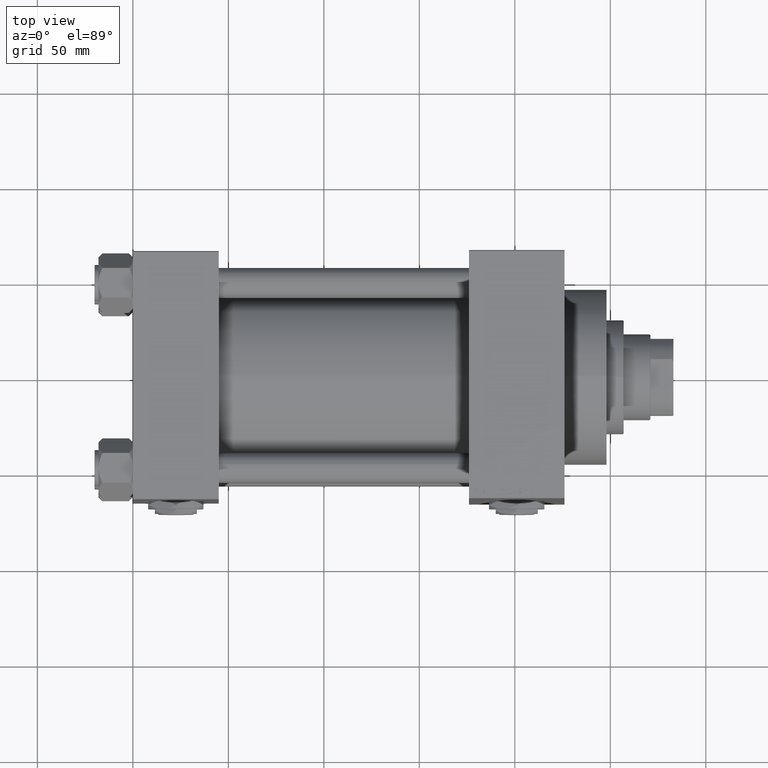
[diagram: clean part render]
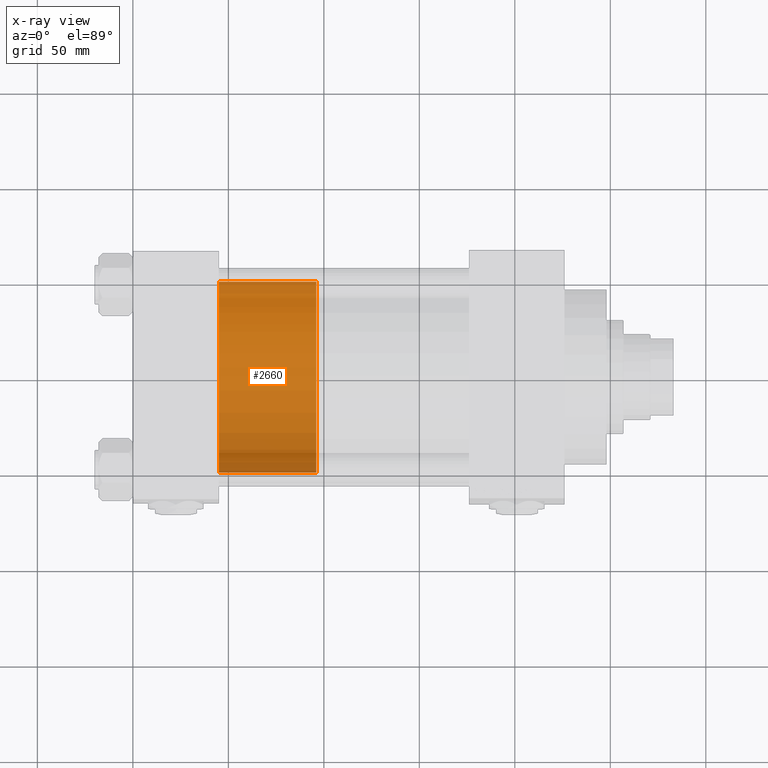
[diagram: x-ray — body ghosted, one internal face saturated and labeled with its STEP entity id]
A machine part, top view, then the same camera in x-ray: the body is ghosted and one INTERNAL B-rep face — a face not visible from any outside direction — is saturated and labeled: STEP entity #2660.
In plain terms, the highlighted cylindrical surface (partial cylindrical patch) has radius 50 mm, axis along (-1, 0, 0).
Its self-contained STEP definition (entity closure, byte-faithful):
#590 = CARTESIAN_POINT ( 'NONE',  ( -50.00000000000000000, 0.000000000000000000, 0.000000000000000000 ) ) ;
#2521 = DIRECTION ( 'NONE',  ( -0.000000000000000000, -0.000000000000000000, -1.000000000000000000 ) ) ;
#2660 = ADVANCED_FACE ( 'NONE', ( #43800 ), #32478, .T. ) ;
#2764 = ORIENTED_EDGE ( 'NONE', *, *, #21436, .T. ) ;
#4764 = VERTEX_POINT ( 'NONE', #45566 ) ;
#7732 = CARTESIAN_POINT ( 'NONE',  ( 50.00000000000000000, 6.123233995736766085E-15, 51.00000000000000000 ) ) ;
#8782 = EDGE_CURVE ( 'NONE', #26380, #25158, #18733, .T. ) ;
#9316 = CARTESIAN_POINT ( 'NONE',  ( 0.000000000000000000, 0.000000000000000000, 51.00000000000000000 ) ) ;
#10393 = ORIENTED_EDGE ( 'NONE', *, *, #16239, .T. ) ;
#10449 = DIRECTION ( 'NONE',  ( -0.000000000000000000, -0.000000000000000000, -1.000000000000000000 ) ) ;
#11430 = AXIS2_PLACEMENT_3D ( 'NONE', #26696, #14856, #46083 ) ;
#13352 = CIRCLE ( 'NONE', #44008, 50.00000000000000000 ) ;
#14856 = DIRECTION ( 'NONE',  ( 0.000000000000000000, 0.000000000000000000, 1.000000000000000000 ) ) ;
#15280 = LINE ( 'NONE', #7732, #37912 ) ;
#16239 = EDGE_CURVE ( 'NONE', #4764, #22013, #15280, .T. ) ;
#18733 = LINE ( 'NONE', #49204, #46472 ) ;
#19532 = ORIENTED_EDGE ( 'NONE', *, *, #33563, .F. ) ;
#21436 = EDGE_CURVE ( 'NONE', #22013, #25158, #47608, .T. ) ;
#22013 = VERTEX_POINT ( 'NONE', #48252 ) ;
#25158 = VERTEX_POINT ( 'NONE', #590 ) ;
#26380 = VERTEX_POINT ( 'NONE', #31286 ) ;
#26696 = CARTESIAN_POINT ( 'NONE',  ( 0.000000000000000000, 0.000000000000000000, 0.000000000000000000 ) ) ;
#31286 = CARTESIAN_POINT ( 'NONE',  ( -50.00000000000000000, 0.000000000000000000, 51.00000000000000000 ) ) ;
#32478 = CYLINDRICAL_SURFACE ( 'NONE', #34321, 50.00000000000000000 ) ;
#33563 = EDGE_CURVE ( 'NONE', #4764, #26380, #13352, .T. ) ;
#34321 = AXIS2_PLACEMENT_3D ( 'NONE', #9316, #2521, #40022 ) ;
#37912 = VECTOR ( 'NONE', #42221, 1000.000000000000000 ) ;
#40022 = DIRECTION ( 'NONE',  ( -1.000000000000000000, 0.000000000000000000, 0.000000000000000000 ) ) ;
#41605 = DIRECTION ( 'NONE',  ( 0.000000000000000000, 0.000000000000000000, 1.000000000000000000 ) ) ;
#42221 = DIRECTION ( 'NONE',  ( -0.000000000000000000, -0.000000000000000000, -1.000000000000000000 ) ) ;
#42862 = DIRECTION ( 'NONE',  ( 1.000000000000000000, 0.000000000000000000, 0.000000000000000000 ) ) ;
#43433 = EDGE_LOOP ( 'NONE', ( #19532, #10393, #2764, #44734 ) ) ;
#43800 = FACE_OUTER_BOUND ( 'NONE', #43433, .T. ) ;
#44008 = AXIS2_PLACEMENT_3D ( 'NONE', #46137, #41605, #42862 ) ;
#44734 = ORIENTED_EDGE ( 'NONE', *, *, #8782, .F. ) ;
#45566 = CARTESIAN_POINT ( 'NONE',  ( 50.00000000000000000, 6.123233995736766085E-15, 51.00000000000000000 ) ) ;
#46083 = DIRECTION ( 'NONE',  ( 1.000000000000000000, 0.000000000000000000, 0.000000000000000000 ) ) ;
#46137 = CARTESIAN_POINT ( 'NONE',  ( 0.000000000000000000, 0.000000000000000000, 51.00000000000000000 ) ) ;
#46472 = VECTOR ( 'NONE', #10449, 1000.000000000000000 ) ;
#47608 = CIRCLE ( 'NONE', #11430, 50.00000000000000000 ) ;
#48252 = CARTESIAN_POINT ( 'NONE',  ( 50.00000000000000000, 6.123233995736766085E-15, 0.000000000000000000 ) ) ;
#49204 = CARTESIAN_POINT ( 'NONE',  ( -50.00000000000000000, 0.000000000000000000, 51.00000000000000000 ) ) ;